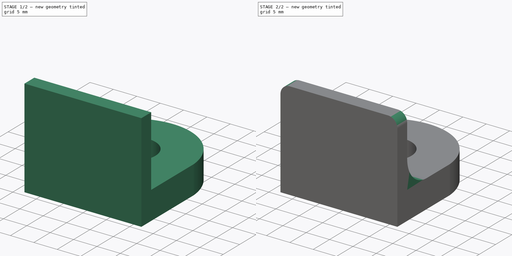
[diagram: build sequence overview — one tinted view per stage of 2, left to right]
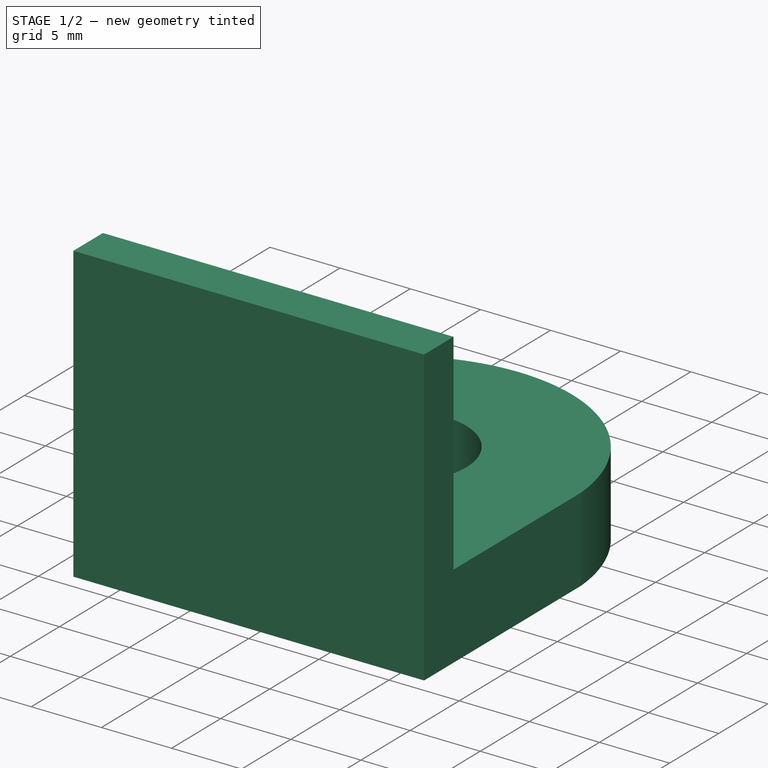
[diagram: stage 1 of 2 — iso view after this stage's code; geometry added in this stage tinted green]
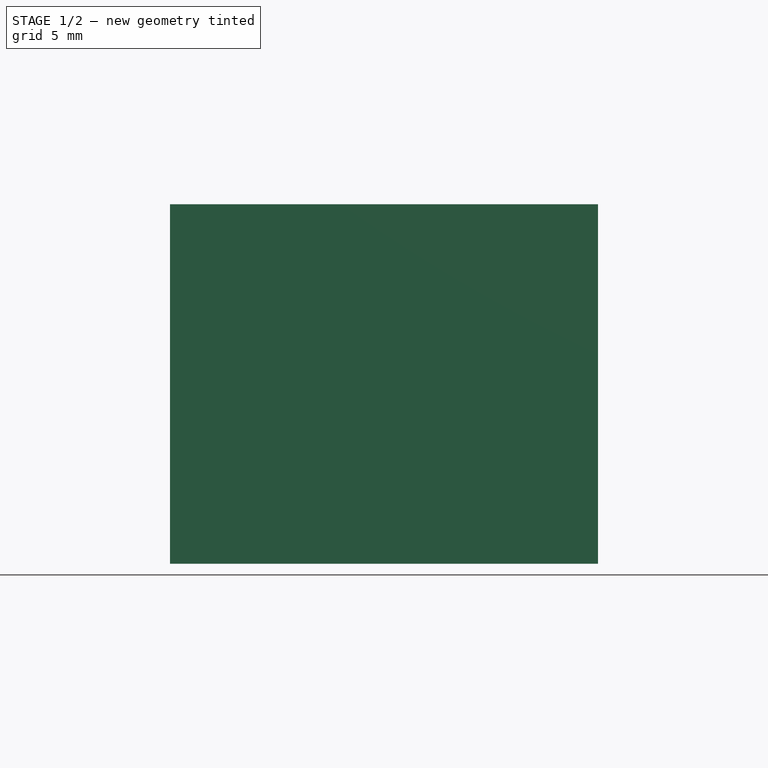
[diagram: stage 1 of 2 — front view after this stage's code; geometry added in this stage tinted green]
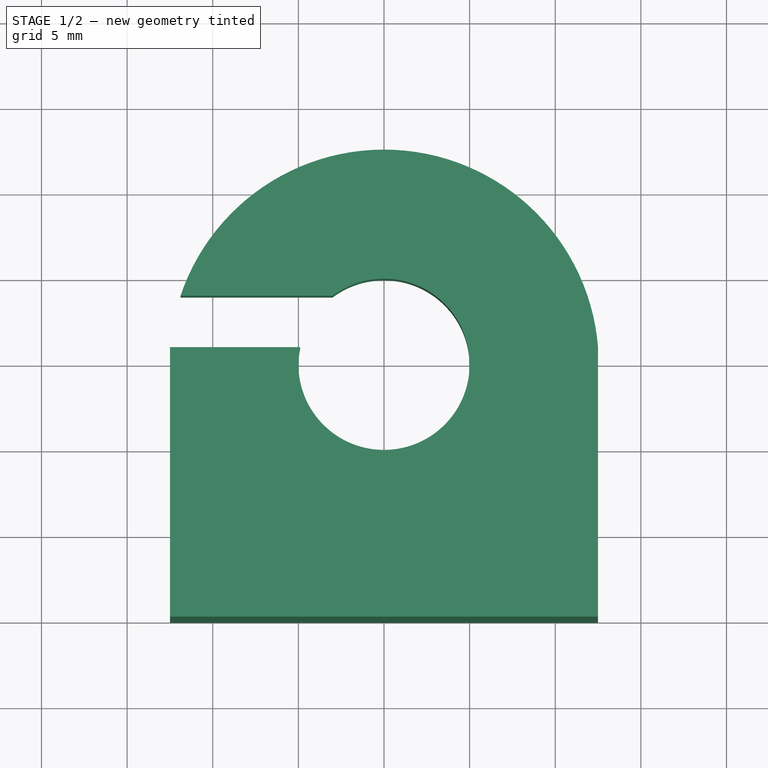
[diagram: stage 1 of 2 — top view after this stage's code; geometry added in this stage tinted green]
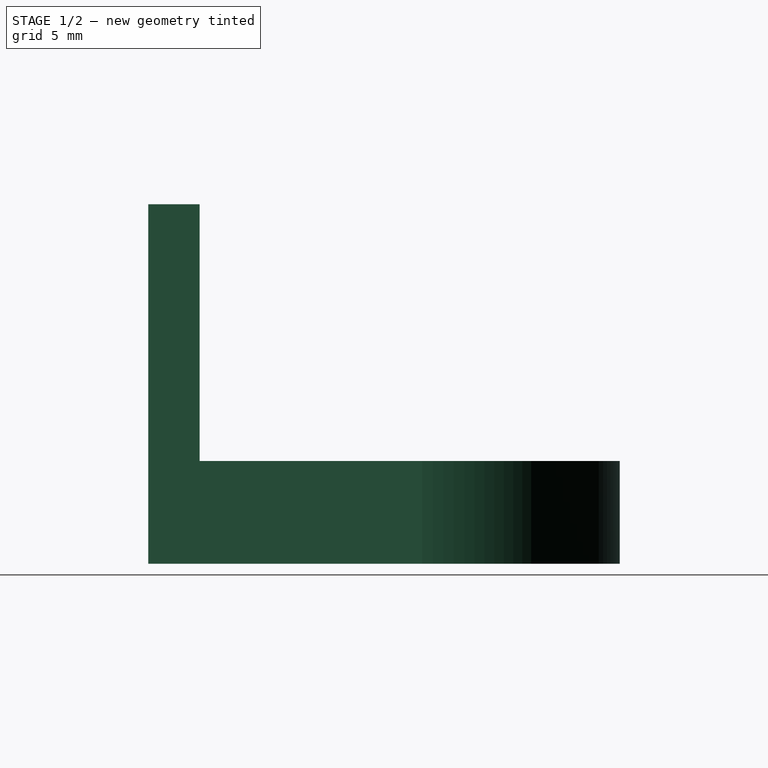
[diagram: stage 1 of 2 — right view after this stage's code; geometry added in this stage tinted green]
FCSTD DOCUMENT  (FreeCAD 0.14R$WCREV$)
Label: cable_hook
License: CC-BY 3.0
LicenseURL: http://creativecommons.org/licenses/by/3.0/
objects: Sketcher::SketchObject×2, PartDesign::Pad×2, PartDesign::Fillet×2
note: 8 computed .brp shape members not serialized (recipe doc carries the construction recipe); baked Part::Feature solids carry a one-line shape summary decoded from their .brp

FEATURE [Sketcher::SketchObject] Sketch
  sketch-geometry (7):
    g0: LineSegment StartX=-12.5 StartY=0 StartZ=0 EndX=12.5 EndY=0 EndZ=0
    g1: LineSegment StartX=12.5 StartY=0 StartZ=0 EndX=12.5 EndY=16 EndZ=0
    g2: LineSegment StartX=-12.5 StartY=16 StartZ=0 EndX=-12.5 EndY=0 EndZ=0
    g3: ArcOfCircle CenterX=0 CenterY=15 CenterZ=0 NormalX=0 NormalY=0 NormalZ=1 Radius=5 StartAngle=2.94023 EndAngle=8.49748
    g4: ArcOfCircle CenterX=0 CenterY=15 CenterZ=0 NormalX=0 NormalY=0 NormalZ=1 Radius=12.5399 StartAngle=0.07983 EndAngle=2.81694
    g5: LineSegment StartX=-11.8849 StartY=19 StartZ=0 EndX=-3 EndY=19 EndZ=0
    g6: LineSegment StartX=-4.89898 StartY=16 StartZ=0 EndX=-12.5 EndY=16 EndZ=0
  constraints (22):
    c: Coincident(g0,g1)
    c: Coincident(g2,g0)
    c: Horizontal(g0)
    c: Vertical(g1)
    c: Vertical(g2)
    c: DistanceY(g0) = 0
    c: DistanceX(g0) = 25
    c: DistanceX(g-1,g0) = 12.5
    c: DistanceY(g1) = 16
    c: DistanceY(g3,g0) = -15
    c: DistanceX(g3,g2) = -12.5
    c: Coincident(g4,g3)
    c: Coincident(g4,g1)
    c: Horizontal(g5)
    c: Horizontal(g6)
    c: Coincident(g3,g6)
    c: Coincident(g3,g5)
    c: Coincident(g4,g5)
    c: DistanceY(g4,g2) = -3
    c: Coincident(g6,g2)
    c: DistanceY(g-1,g2) = 16
    c: Radius(g3) = 5
FEATURE [PartDesign::Pad] Pad
  Length = 6
  Length2 = 5
  Sketch = -> Sketch
  Type = 0
FEATURE [Sketcher::SketchObject] Sketch001
  ExternalGeometry = -> [Pad]
  Placement = pos=(0,0,6) rot=(0,0,1;0rad)
  Support = -> Pad [Face9]
  sketch-geometry (4):
    g0: LineSegment StartX=-12.5 StartY=0 StartZ=0 EndX=12.5 EndY=0 EndZ=0
    g1: LineSegment StartX=12.5 StartY=0 StartZ=0 EndX=12.5 EndY=3 EndZ=0
    g2: LineSegment StartX=12.5 StartY=3 StartZ=0 EndX=-12.5 EndY=3 EndZ=0
    g3: LineSegment StartX=-12.5 StartY=3 StartZ=0 EndX=-12.5 EndY=0 EndZ=0
  constraints (11):
    c: Coincident(g0,g1)
    c: Coincident(g1,g2)
    c: Coincident(g2,g3)
    c: Coincident(g3,g0)
    c: Horizontal(g0)
    c: Horizontal(g2)
    c: Vertical(g1)
    c: Vertical(g3)
    c: Coincident(g0,g-4)
    c: PointOnObject(g1,g-5)
    c: DistanceY(g3) = -3
FEATURE [PartDesign::Pad] Pad001
  Length = 15
  Length2 = 5
  Sketch = -> Sketch001
  Type = 0
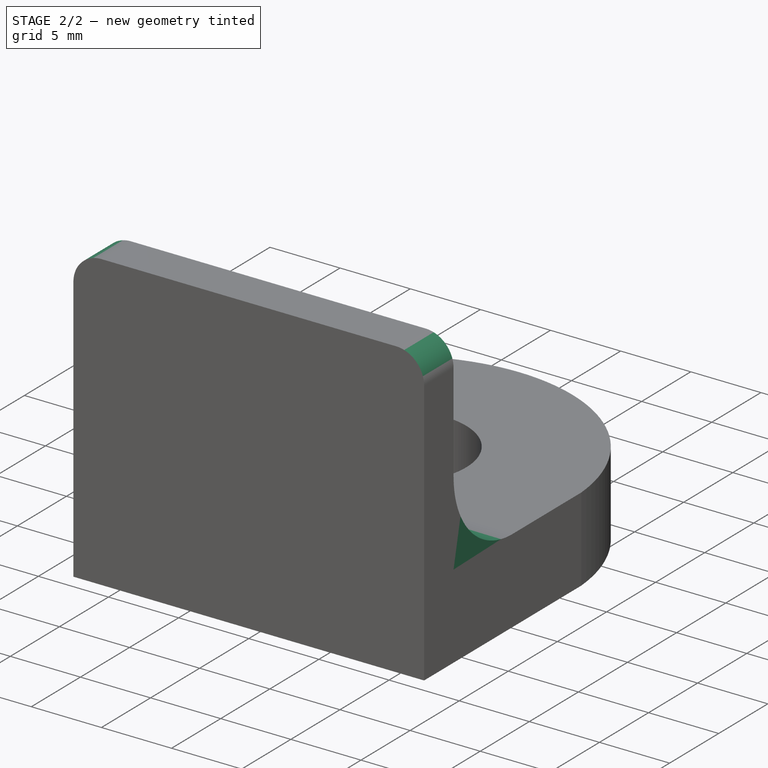
[diagram: stage 2 of 2 — iso view after this stage's code; geometry added in this stage tinted green]
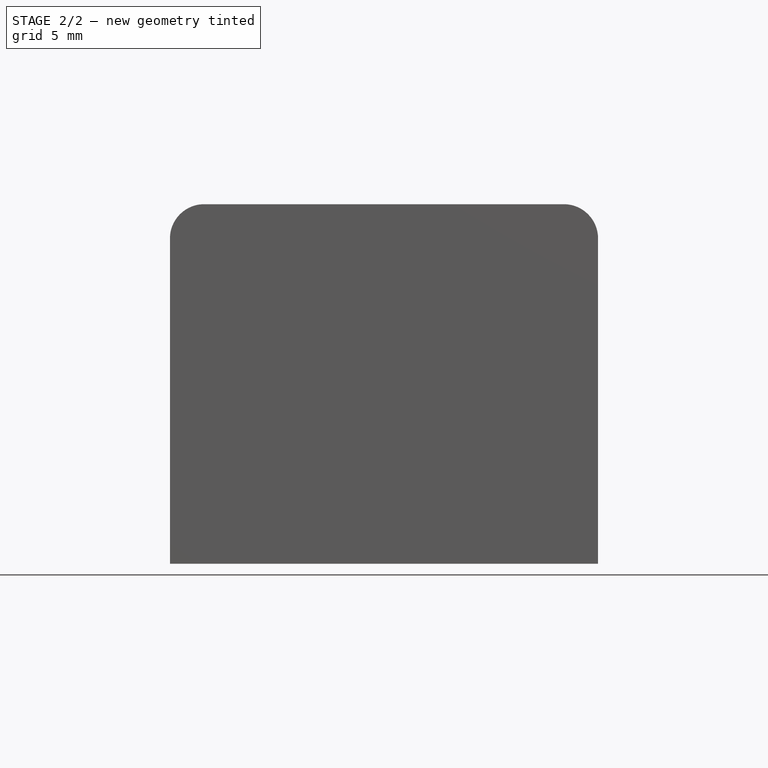
[diagram: stage 2 of 2 — front view after this stage's code; geometry added in this stage tinted green]
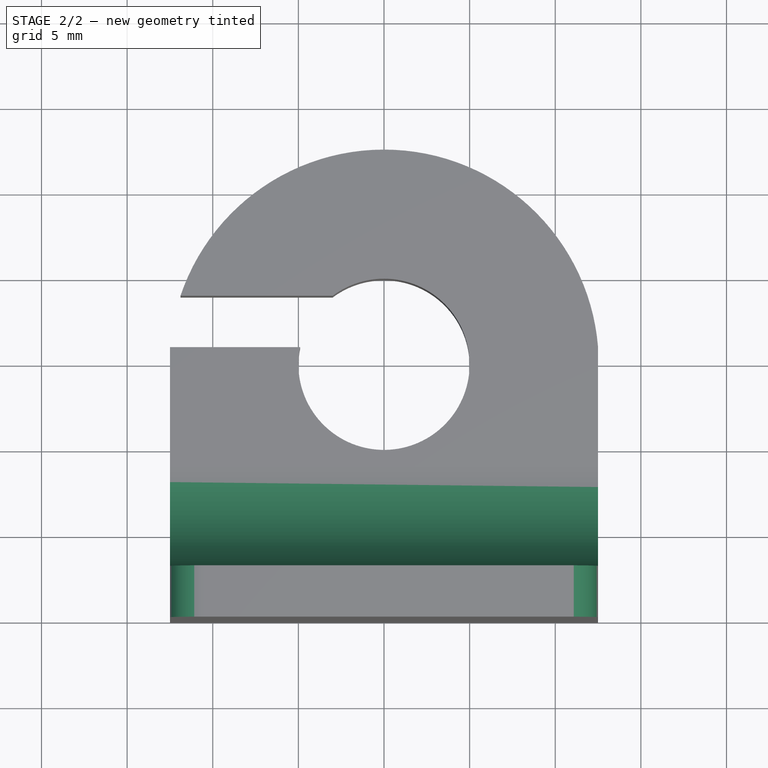
[diagram: stage 2 of 2 — top view after this stage's code; geometry added in this stage tinted green]
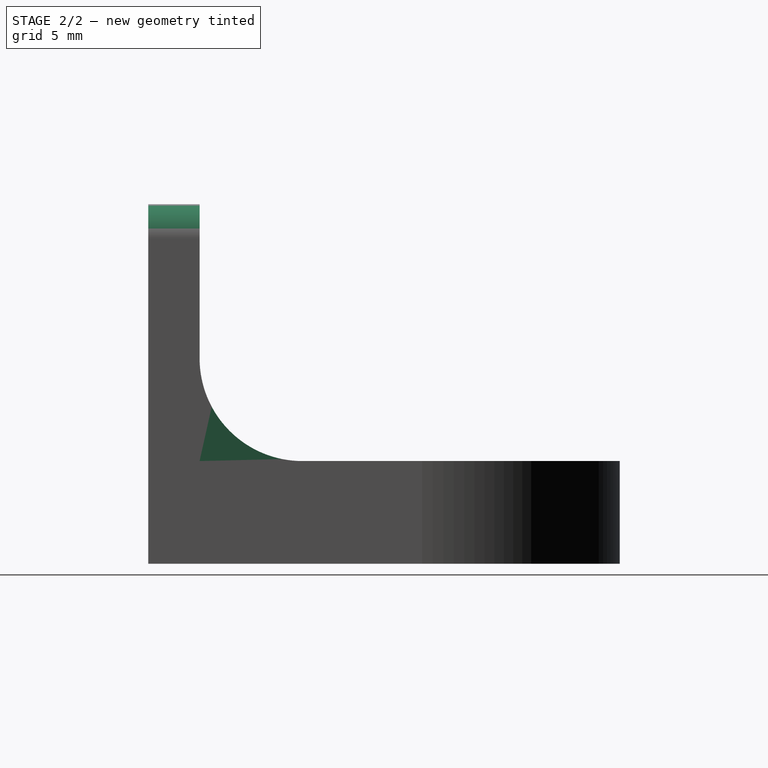
[diagram: stage 2 of 2 — right view after this stage's code; geometry added in this stage tinted green]
FEATURE [PartDesign::Fillet] Fillet
  Base = -> Pad001 [Edge16]
  Radius = 6
FEATURE [PartDesign::Fillet] Fillet001
  Base = -> Fillet [Edge15,Edge36]
  Radius = 2
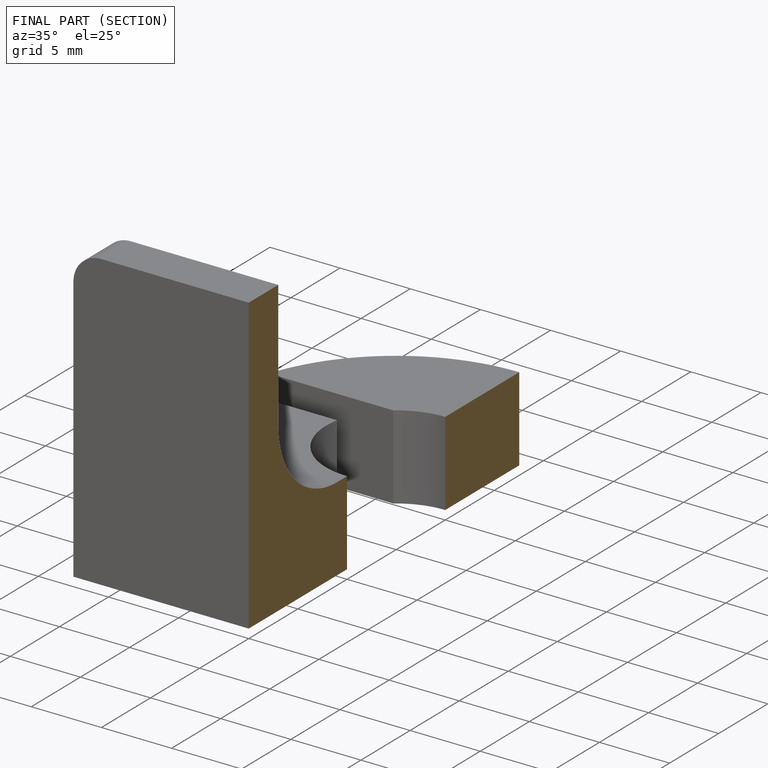
[diagram: finished part — half-section view (interior)]
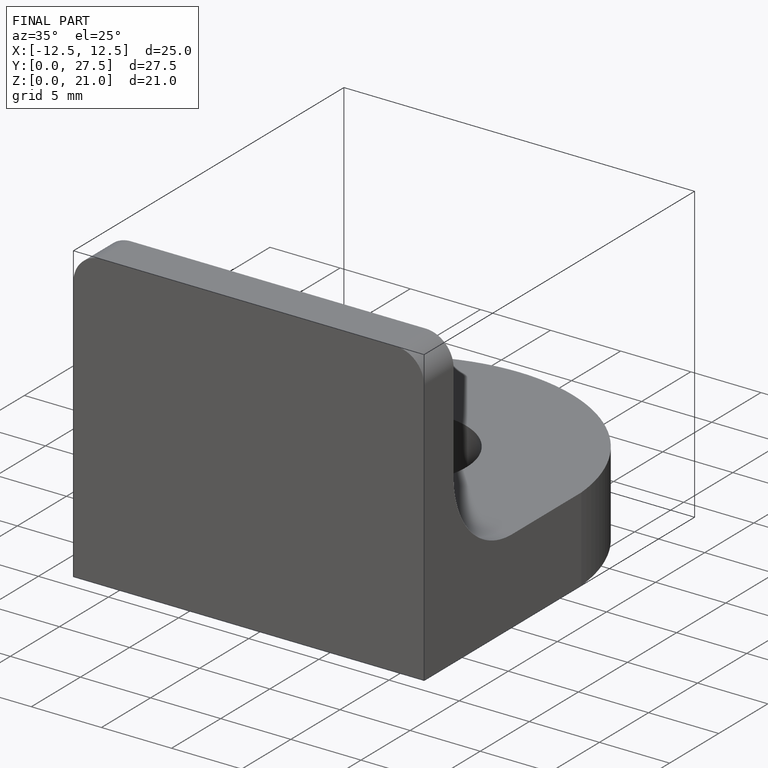
[diagram: finished part — iso view with bounding-box wireframe]
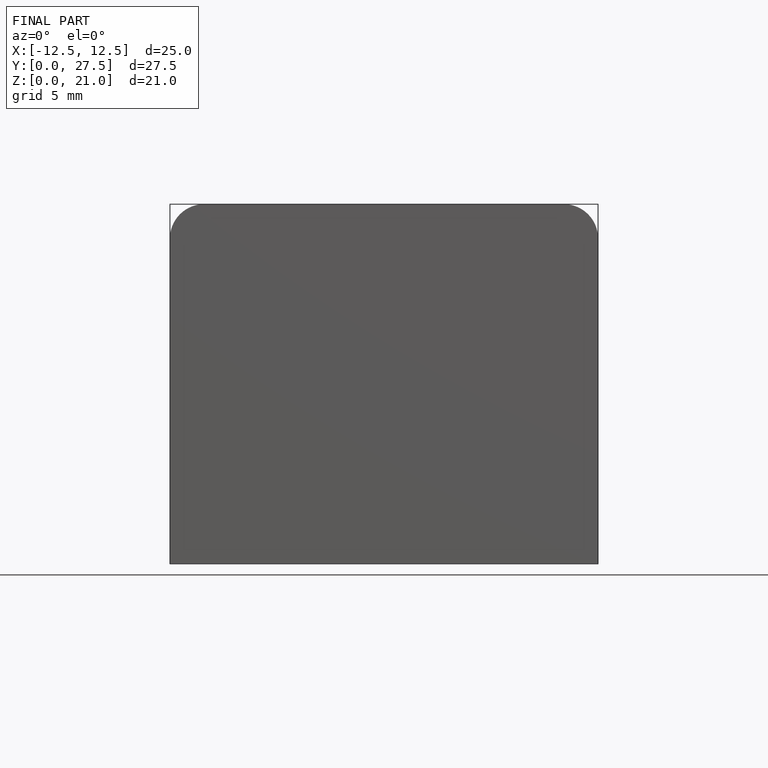
[diagram: finished part — front view with bounding-box wireframe]
